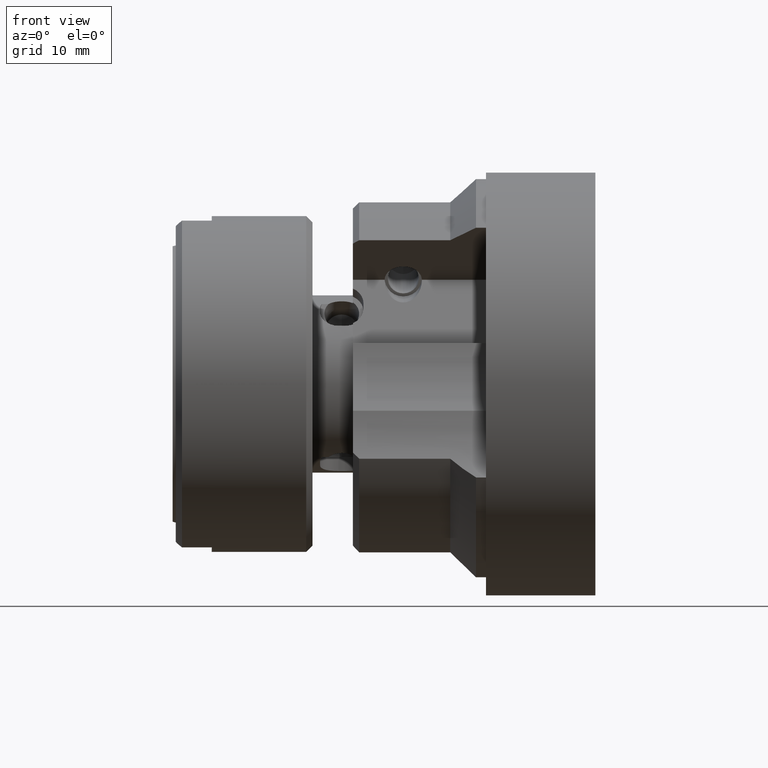
[diagram: clean part render]
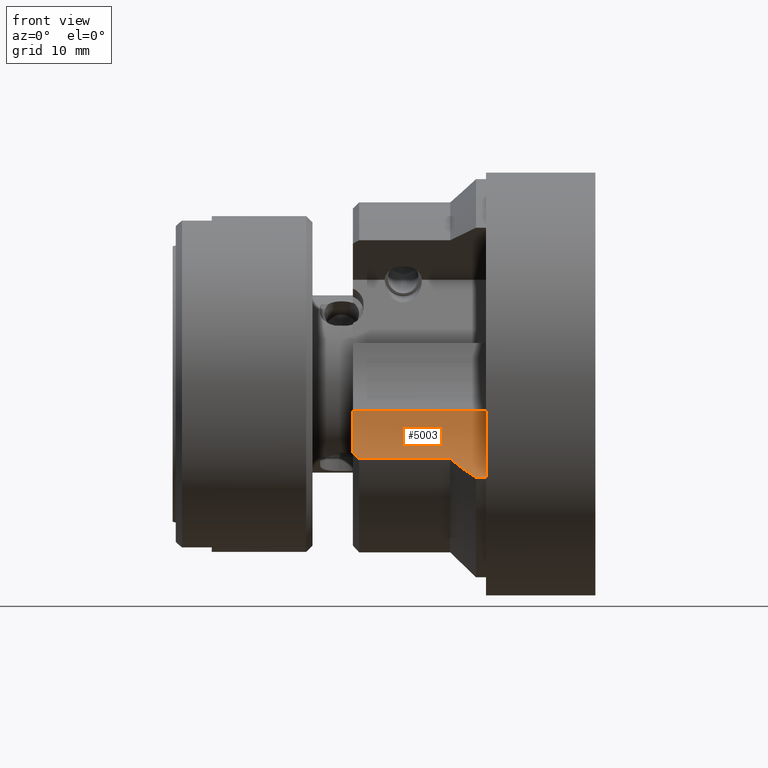
[diagram: same view with one face highlighted and labeled with its STEP entity id]
A machine part, front view. The second image highlights one B-rep face of the part: STEP entity #5003.
In plain terms, the highlighted cylindrical surface (partial cylindrical patch) has radius 18 mm, axis along (1, -0, -0).
Its self-contained STEP definition (entity closure, byte-faithful):
#130 = EDGE_LOOP ( 'NONE', ( #866, #867, #868, #869, #870, #871, #872 ) ) ;
#403 = VERTEX_POINT ( 'NONE', #878 ) ;
#866 = ORIENTED_EDGE ( 'NONE', *, *, #4734, .T. ) ;
#867 = ORIENTED_EDGE ( 'NONE', *, *, #4812, .T. ) ;
#868 = ORIENTED_EDGE ( 'NONE', *, *, #4810, .F. ) ;
#869 = ORIENTED_EDGE ( 'NONE', *, *, #1026, .T. ) ;
#870 = ORIENTED_EDGE ( 'NONE', *, *, #4762, .T. ) ;
#871 = ORIENTED_EDGE ( 'NONE', *, *, #4759, .F. ) ;
#872 = ORIENTED_EDGE ( 'NONE', *, *, #4761, .F. ) ;
#878 = CARTESIAN_POINT ( 'NONE',  ( -37.00000000000000700, -23.52100956362399500, -4.294854441084186900 ) ) ;
#1026 = EDGE_CURVE ( 'NONE', #403, #4595, #1189, .T. ) ;
#1189 = CIRCLE ( 'NONE', #1437, 18.00000000000000400 ) ;
#1356 = LINE ( 'NONE', #2258, #1358 ) ;
#1358 = VECTOR ( 'NONE', #2259, 1000.000000000000000 ) ;
#1437 = AXIS2_PLACEMENT_3D ( 'NONE', #1617, #1618, #1619 ) ;
#1617 = CARTESIAN_POINT ( 'NONE',  ( -37.00000000000000700, -41.31088913245537200, -1.552558883257459300 ) ) ;
#1618 = DIRECTION ( 'NONE',  ( -1.000000000000000000, -0.0000000000000000000, -0.0000000000000000000 ) ) ;
#1619 = DIRECTION ( 'NONE',  ( 0.0000000000000000000, 0.0000000000000000000, 1.000000000000000000 ) ) ;
#2009 = CARTESIAN_POINT ( 'NONE',  ( -15.59999999999999600, -29.37883799264060500, -15.02943372859327400 ) ) ;
#2014 = CARTESIAN_POINT ( 'NONE',  ( -36.00000000000000700, -26.66660475714874300, -12.01893051506713100 ) ) ;
#2017 = CARTESIAN_POINT ( 'NONE',  ( -17.19999999999999900, -29.37883799264059800, -15.02943372859326700 ) ) ;
#2018 = CARTESIAN_POINT ( 'NONE',  ( -21.35000000000000100, -26.66660475714874300, -12.01893051506713500 ) ) ;
#2100 = CARTESIAN_POINT ( 'NONE',  ( -15.59999999999999600, -23.52100956362399500, -4.294854441084186900 ) ) ;
#2141 = CARTESIAN_POINT ( 'NONE',  ( -37.00000000000000700, -26.00783901562199300, -11.02972391936852700 ) ) ;
#2258 = CARTESIAN_POINT ( 'NONE',  ( -9.100000000000003200, -29.37883799264059800, -15.02943372859326700 ) ) ;
#2259 = DIRECTION ( 'NONE',  ( 1.000000000000000000, -0.0000000000000000000, -0.0000000000000000000 ) ) ;
#2331 = DIRECTION ( 'NONE',  ( -1.000000000000000000, 0.0000000000000000000, 0.0000000000000000000 ) ) ;
#2332 = CARTESIAN_POINT ( 'NONE',  ( -20.00000000000000000, -26.66660475714874300, -12.01893051506713100 ) ) ;
#2335 = CARTESIAN_POINT ( 'NONE',  ( -37.00000000000000700, -26.00783901562199300, -11.02972391936852700 ) ) ;
#2339 = CARTESIAN_POINT ( 'NONE',  ( -17.19999999999999900, -29.37883799264059800, -15.02943372859326700 ) ) ;
#2340 = CARTESIAN_POINT ( 'NONE',  ( -18.61827960286968800, -28.38805445661997200, -14.15222147011659000 ) ) ;
#2344 = CARTESIAN_POINT ( 'NONE',  ( -36.67237264872684900, -26.21906509295684300, -11.37079672279875500 ) ) ;
#2345 = CARTESIAN_POINT ( 'NONE',  ( -20.00844948755908700, -27.48204974638491600, -13.15988066807910100 ) ) ;
#2346 = CARTESIAN_POINT ( 'NONE',  ( -21.35000000000000100, -26.66660475714874300, -12.01893051506713500 ) ) ;
#2349 = CARTESIAN_POINT ( 'NONE',  ( -36.33871600557295500, -26.43875939804180300, -11.70013500983062300 ) ) ;
#2350 = CARTESIAN_POINT ( 'NONE',  ( -36.00000000000000700, -26.66660475714874300, -12.01893051506713100 ) ) ;
#2461 = CARTESIAN_POINT ( 'NONE',  ( -40.00000000000000000, -23.52100956362399500, -4.294854441084186900 ) ) ;
#2462 = DIRECTION ( 'NONE',  ( 1.000000000000000000, -0.0000000000000000000, -0.0000000000000000000 ) ) ;
#2468 = CARTESIAN_POINT ( 'NONE',  ( -15.59999999999999600, -41.31088913245537200, -1.552558883257459300 ) ) ;
#2469 = DIRECTION ( 'NONE',  ( 1.000000000000000000, -0.0000000000000000000, -0.0000000000000000000 ) ) ;
#2470 = DIRECTION ( 'NONE',  ( 0.0000000000000000000, 1.927470528863118600E-015, 1.000000000000000000 ) ) ;
#2491 = AXIS2_PLACEMENT_3D ( 'NONE', #2468, #2469, #2470 ) ;
#2585 = AXIS2_PLACEMENT_3D ( 'NONE', #3739, #3740, #3738 ) ;
#2676 = LINE ( 'NONE', #2332, #2678 ) ;
#2678 = VECTOR ( 'NONE', #2331, 1000.000000000000000 ) ;
#2754 = LINE ( 'NONE', #2461, #2757 ) ;
#2757 = VECTOR ( 'NONE', #2462, 1000.000000000000000 ) ;
#2758 = CIRCLE ( 'NONE', #2491, 18.00000000000000400 ) ;
#3451 = FACE_OUTER_BOUND ( 'NONE', #130, .T. ) ;
#3459 = CYLINDRICAL_SURFACE ( 'NONE', #2585, 18.00000000000000400 ) ;
#3738 = DIRECTION ( 'NONE',  ( 0.0000000000000000000, 0.0000000000000000000, -1.000000000000000000 ) ) ;
#3739 = CARTESIAN_POINT ( 'NONE',  ( -40.00000000000000000, -41.31088913245537200, -1.552558883257459300 ) ) ;
#3740 = DIRECTION ( 'NONE',  ( 1.000000000000000000, -0.0000000000000000000, -0.0000000000000000000 ) ) ;
#4284 = VERTEX_POINT ( 'NONE', #2009 ) ;
#4289 = VERTEX_POINT ( 'NONE', #2014 ) ;
#4292 = VERTEX_POINT ( 'NONE', #2017 ) ;
#4293 = VERTEX_POINT ( 'NONE', #2018 ) ;
#4418 = B_SPLINE_CURVE_WITH_KNOTS ( 'NONE', 3,
 ( #2335, #2344, #2349, #2350 ),
 .UNSPECIFIED., .F., .F.,
 ( 4, 4 ),
 ( 3.160560185326372300E-007, 0.001553539153703652900 ),
 .UNSPECIFIED. ) ;
#4423 = B_SPLINE_CURVE_WITH_KNOTS ( 'NONE', 3,
 ( #2339, #2340, #2345, #2346 ),
 .UNSPECIFIED., .F., .F.,
 ( 4, 4 ),
 ( 2.726379530054892200E-007, 0.005800431146334300600 ),
 .UNSPECIFIED. ) ;
#4494 = VERTEX_POINT ( 'NONE', #2100 ) ;
#4595 = VERTEX_POINT ( 'NONE', #2141 ) ;
#4734 = EDGE_CURVE ( 'NONE', #4292, #4284, #1356, .T. ) ;
#4759 = EDGE_CURVE ( 'NONE', #4293, #4289, #2676, .T. ) ;
#4761 = EDGE_CURVE ( 'NONE', #4292, #4293, #4423, .T. ) ;
#4762 = EDGE_CURVE ( 'NONE', #4595, #4289, #4418, .T. ) ;
#4810 = EDGE_CURVE ( 'NONE', #403, #4494, #2754, .T. ) ;
#4812 = EDGE_CURVE ( 'NONE', #4284, #4494, #2758, .T. ) ;
#5003 = ADVANCED_FACE ( 'NONE', ( #3451 ), #3459, .F. ) ;